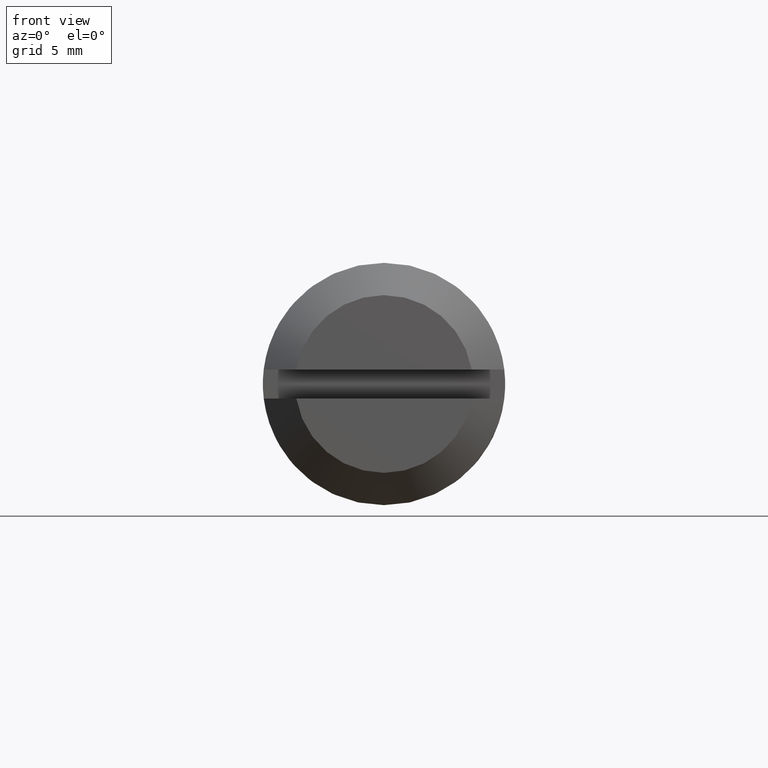
[diagram: clean part render]
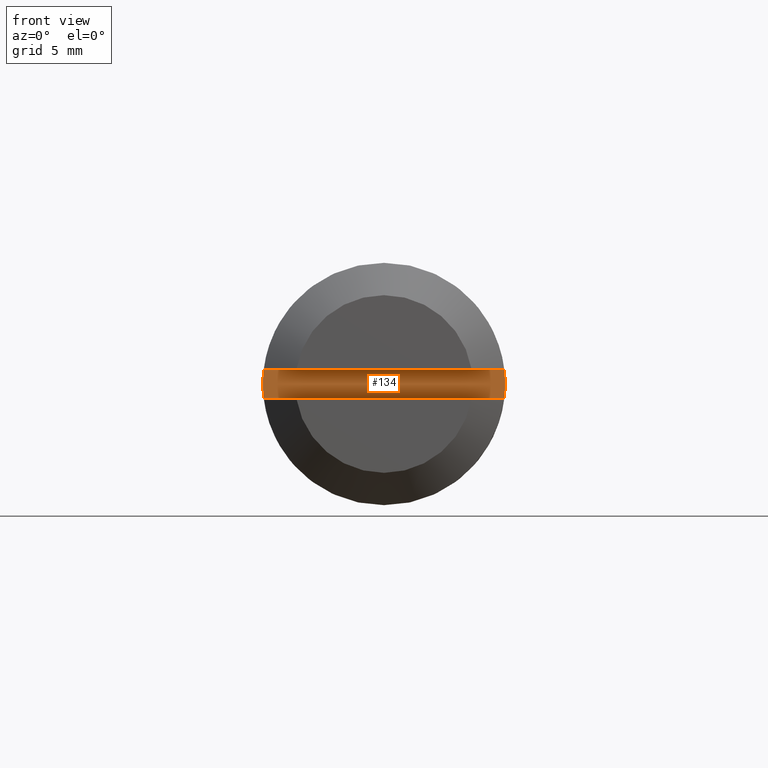
[diagram: same view with one face highlighted and labeled with its STEP entity id]
A machine part, front view. The second image highlights one B-rep face of the part: STEP entity #134.
In plain terms, the highlighted planar face has unit normal (0, -1, 0).
Its self-contained STEP definition (entity closure, byte-faithful):
#134=ADVANCED_FACE('',(#375),#374,.T.);
#374=PLANE('',#658);
#375=FACE_OUTER_BOUND('',#659,.T.);
#655=CARTESIAN_POINT('',(-7.99990000000E+00,-9.06550834529E+00,-1.08000000000E+00));
#656=DIRECTION('',(-1.00000000000E+00,0.00000000000E+00,0.00000000000E+00));
#657=DIRECTION('',(0.00000000000E+00,0.00000000000E+00,1.00000000000E+00));
#658=AXIS2_PLACEMENT_3D('',#655,#656,#657);
#659=EDGE_LOOP('',(#871,#872,#873,#874));
#871=ORIENTED_EDGE('',*,*,#997,.F.);
#872=ORIENTED_EDGE('',*,*,#998,.F.);
#873=ORIENTED_EDGE('',*,*,#996,.T.);
#874=ORIENTED_EDGE('',*,*,#999,.F.);
#996=EDGE_CURVE('',#1389,#1396,#1415,.T.);
#997=EDGE_CURVE('',#1421,#1422,#1423,.T.);
#998=EDGE_CURVE('',#1389,#1421,#1429,.T.);
#999=EDGE_CURVE('',#1422,#1396,#1435,.T.);
#1389=VERTEX_POINT('',#1822);
#1396=VERTEX_POINT('',#1827);
#1415=LINE('',#1840,#1841);
#1421=VERTEX_POINT('',#1843);
#1422=VERTEX_POINT('',#1844);
#1423=LINE('',#1845,#1846);
#1429=CIRCLE('',#1851,7.50000000000E+00);
#1435=CIRCLE('',#1855,7.50000000000E+00);
#1822=CARTESIAN_POINT('',(-7.99990000000E+00,7.44580418759E+00,-9.00000000000E-01));
#1827=CARTESIAN_POINT('',(-7.99990000000E+00,-7.44580418759E+00,-9.00000000000E-01));
#1840=CARTESIAN_POINT('',(-7.99990000000E+00,7.44580418759E+00,-9.00000000000E-01));
#1841=VECTOR('',#1842,1.48916083752E+01);
#1842=DIRECTION('',(0.00000000000E+00,-1.00000000000E+00,0.00000000000E+00));
#1843=CARTESIAN_POINT('',(-7.99990000000E+00,7.44580418759E+00,9.00000000000E-01));
#1844=CARTESIAN_POINT('',(-7.99990000000E+00,-7.44580418759E+00,9.00000000000E-01));
#1845=CARTESIAN_POINT('',(-7.99990000000E+00,7.44580418759E+00,9.00000000000E-01));
#1846=VECTOR('',#1847,1.48916083752E+01);
#1847=DIRECTION('',(0.00000000000E+00,-1.00000000000E+00,0.00000000000E+00));
#1848=CARTESIAN_POINT('',(-7.99990000000E+00,0.00000000000E+00,0.00000000000E+00));
#1849=DIRECTION('',(1.00000000000E+00,0.00000000000E+00,-0.00000000000E+00));
#1850=DIRECTION('',(-0.00000000000E+00,-0.00000000000E+00,-1.00000000000E+00));
#1851=AXIS2_PLACEMENT_3D('',#1848,#1849,#1850);
#1852=CARTESIAN_POINT('',(-7.99990000000E+00,0.00000000000E+00,0.00000000000E+00));
#1853=DIRECTION('',(1.00000000000E+00,0.00000000000E+00,-0.00000000000E+00));
#1854=DIRECTION('',(-0.00000000000E+00,-0.00000000000E+00,-1.00000000000E+00));
#1855=AXIS2_PLACEMENT_3D('',#1852,#1853,#1854);